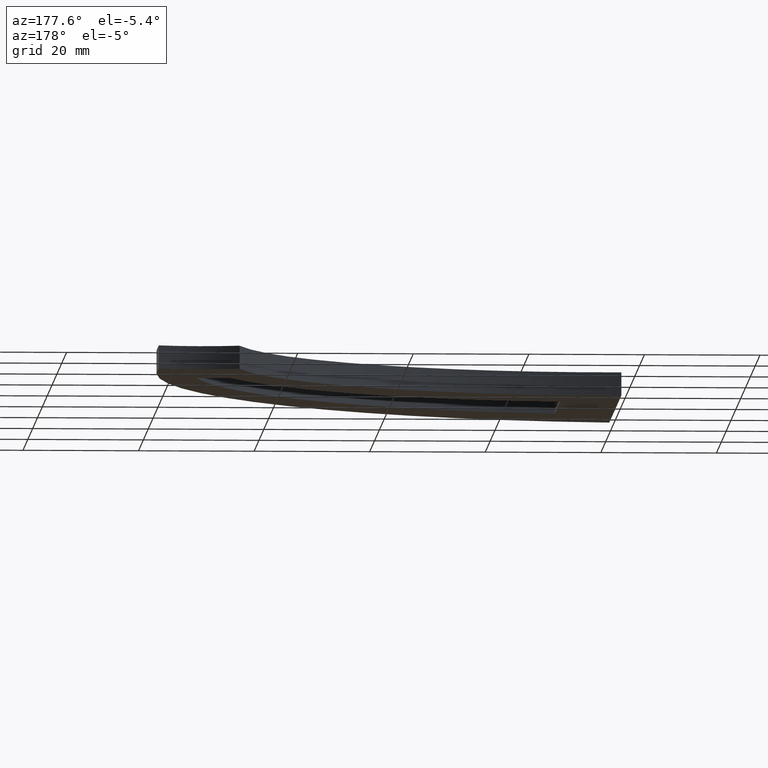
[diagram: clean part render]
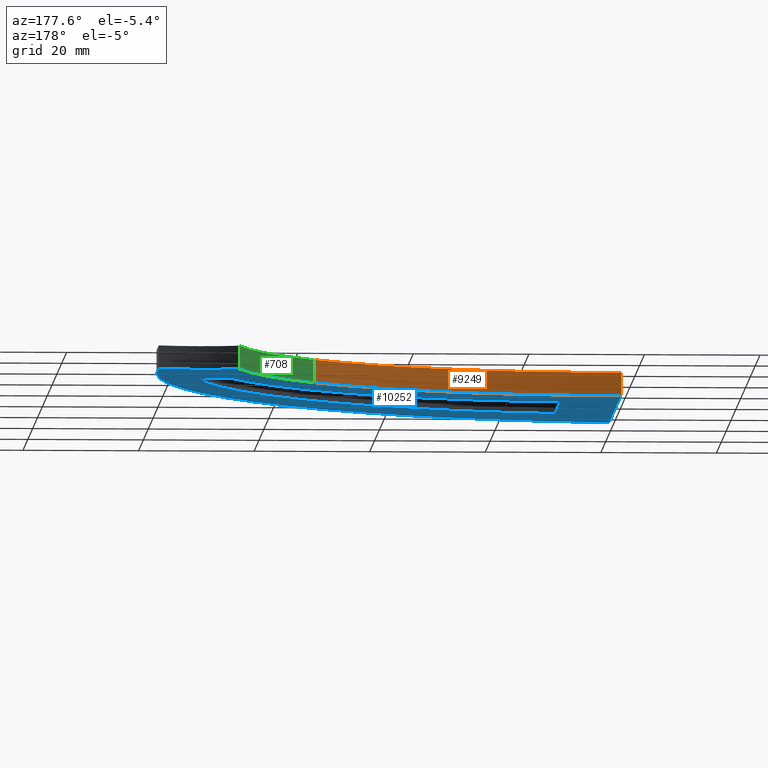
[diagram: same view with three faces highlighted in distinct colors, each labeled with its STEP entity id]
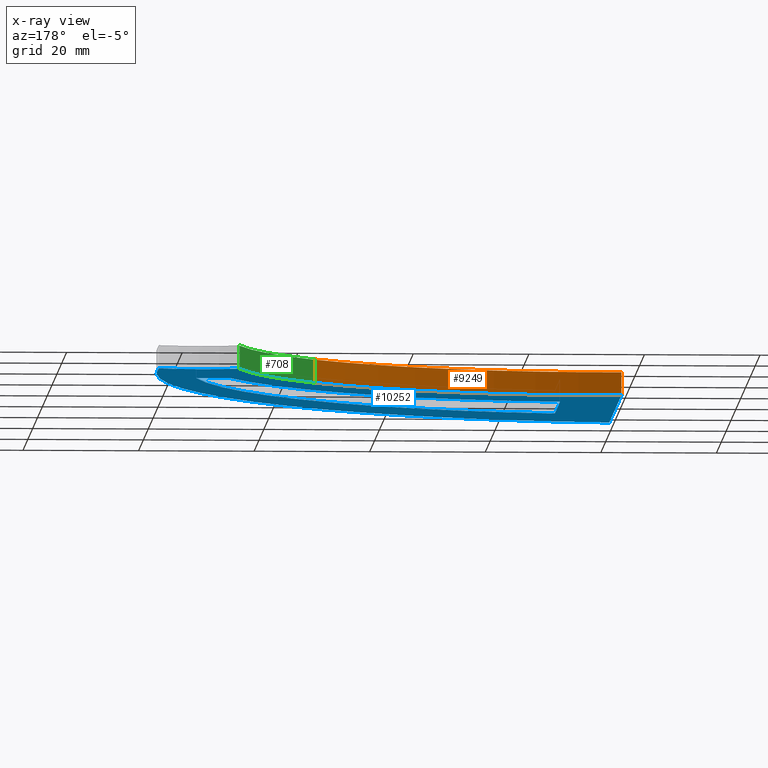
[diagram: x-ray of the same camera — body ghosted, the three highlighted faces saturated]
A machine part, auxiliary view with three faces highlighted in distinct colors.
The next image is the same camera in x-ray (body ghosted, the three faces saturated) — at least one of them is partly hidden behind the body in this view.
Their STEP definitions:

[orange] entity #9249 — the highlighted cylindrical surface (partial cylindrical patch) has radius 70 mm, axis along (-0, -0, -1).
#557 = AXIS2_PLACEMENT_3D ( 'NONE', #2133, #5687, #6585 ) ;
#1533 = ORIENTED_EDGE ( 'NONE', *, *, #4539, .F. ) ;
#1899 = VERTEX_POINT ( 'NONE', #7404 ) ;
#1960 = EDGE_CURVE ( 'NONE', #1899, #6476, #3991, .T. ) ;
#2133 = CARTESIAN_POINT ( 'NONE',  ( 3.879352446742994065, 94.89242179660072907, 2.000000000000000000 ) ) ;
#2349 = CARTESIAN_POINT ( 'NONE',  ( 53.97457268643530881, 45.99999999999996447, 2.000000000000000000 ) ) ;
#2955 = VECTOR ( 'NONE', #10871, 1000.000000000000000 ) ;
#3228 = CARTESIAN_POINT ( 'NONE',  ( 3.879352446742994065, 94.89242179660072907, -2.000000000000000000 ) ) ;
#3770 = CARTESIAN_POINT ( 'NONE',  ( 53.97457268643530881, 45.99999999999996447, -2.000000000000000000 ) ) ;
#3955 = CARTESIAN_POINT ( 'NONE',  ( 3.879352446742994065, 94.89242179660072907, 2.000000000000000000 ) ) ;
#3979 = DIRECTION ( 'NONE',  ( -0.000000000000000000, 0.000000000000000000, 1.000000000000000000 ) ) ;
#3991 = LINE ( 'NONE', #2349, #10642 ) ;
#4134 = ORIENTED_EDGE ( 'NONE', *, *, #11594, .T. ) ;
#4160 = ORIENTED_EDGE ( 'NONE', *, *, #10152, .F. ) ;
#4539 = EDGE_CURVE ( 'NONE', #9402, #6476, #10929, .T. ) ;
#4810 = DIRECTION ( 'NONE',  ( 1.000000000000000000, 0.000000000000000000, 0.000000000000000000 ) ) ;
#4881 = DIRECTION ( 'NONE',  ( -0.000000000000000000, 0.000000000000000000, 1.000000000000000000 ) ) ;
#4959 = DIRECTION ( 'NONE',  ( 1.000000000000000000, 0.000000000000000000, 0.000000000000000000 ) ) ;
#5365 = LINE ( 'NONE', #9974, #2955 ) ;
#5687 = DIRECTION ( 'NONE',  ( -0.000000000000000000, -0.000000000000000000, -1.000000000000000000 ) ) ;
#5742 = AXIS2_PLACEMENT_3D ( 'NONE', #3955, #3979, #4810 ) ;
#5794 = CYLINDRICAL_SURFACE ( 'NONE', #557, 69.99999999999997158 ) ;
#6476 = VERTEX_POINT ( 'NONE', #3770 ) ;
#6506 = FACE_OUTER_BOUND ( 'NONE', #11247, .T. ) ;
#6585 = DIRECTION ( 'NONE',  ( -1.000000000000000000, 0.000000000000000000, 0.000000000000000000 ) ) ;
#7147 = CARTESIAN_POINT ( 'NONE',  ( 1.998401444325281773E-12, 24.99999999999996803, 2.000000000000000000 ) ) ;
#7404 = CARTESIAN_POINT ( 'NONE',  ( 53.97457268643530881, 45.99999999999996447, 2.000000000000000000 ) ) ;
#7725 = AXIS2_PLACEMENT_3D ( 'NONE', #3228, #4881, #4959 ) ;
#7967 = ORIENTED_EDGE ( 'NONE', *, *, #1960, .T. ) ;
#8885 = CIRCLE ( 'NONE', #5742, 69.99999999999997158 ) ;
#9249 = ADVANCED_FACE ( 'NONE', ( #6506 ), #5794, .F. ) ;
#9402 = VERTEX_POINT ( 'NONE', #10418 ) ;
#9665 = DIRECTION ( 'NONE',  ( -0.000000000000000000, -0.000000000000000000, -1.000000000000000000 ) ) ;
#9974 = CARTESIAN_POINT ( 'NONE',  ( 1.998401444325281773E-12, 24.99999999999996803, 2.000000000000000000 ) ) ;
#10152 = EDGE_CURVE ( 'NONE', #11341, #9402, #5365, .T. ) ;
#10418 = CARTESIAN_POINT ( 'NONE',  ( 1.998401444325281773E-12, 24.99999999999996803, -2.000000000000000000 ) ) ;
#10642 = VECTOR ( 'NONE', #9665, 1000.000000000000000 ) ;
#10871 = DIRECTION ( 'NONE',  ( -0.000000000000000000, -0.000000000000000000, -1.000000000000000000 ) ) ;
#10929 = CIRCLE ( 'NONE', #7725, 69.99999999999997158 ) ;
#11247 = EDGE_LOOP ( 'NONE', ( #1533, #4160, #4134, #7967 ) ) ;
#11341 = VERTEX_POINT ( 'NONE', #7147 ) ;
#11594 = EDGE_CURVE ( 'NONE', #11341, #1899, #8885, .T. ) ;

[blue] entity #10252 — the highlighted planar face has unit normal (-0, 0, 1).
#188 = DIRECTION ( 'NONE',  ( -0.000000000000000000, 0.000000000000000000, 1.000000000000000000 ) ) ;
#717 = DIRECTION ( 'NONE',  ( 1.000000000000000000, 0.000000000000000000, 0.000000000000000000 ) ) ;
#876 = CIRCLE ( 'NONE', #5707, 91.99999999999938893 ) ;
#1024 = ORIENTED_EDGE ( 'NONE', *, *, #4539, .T. ) ;
#1030 = ORIENTED_EDGE ( 'NONE', *, *, #6707, .F. ) ;
#1039 = EDGE_CURVE ( 'NONE', #1054, #9118, #1302, .T. ) ;
#1054 = VERTEX_POINT ( 'NONE', #3146 ) ;
#1209 = EDGE_CURVE ( 'NONE', #2931, #3038, #876, .T. ) ;
#1230 = DIRECTION ( 'NONE',  ( 1.000000000000000000, 0.000000000000000000, 0.000000000000000000 ) ) ;
#1302 = CIRCLE ( 'NONE', #10175, 78.49999999999998579 ) ;
#1337 = PLANE ( 'NONE',  #8151 ) ;
#1444 = LINE ( 'NONE', #7695, #8403 ) ;
#2155 = VECTOR ( 'NONE', #11701, 1000.000000000000000 ) ;
#2259 = CIRCLE ( 'NONE', #3148, 70.00000000000000000 ) ;
#2624 = DIRECTION ( 'NONE',  ( -0.000000000000000000, 0.000000000000000000, 1.000000000000000000 ) ) ;
#2931 = VERTEX_POINT ( 'NONE', #5619 ) ;
#2990 = CARTESIAN_POINT ( 'NONE',  ( 5.180452133363093736, 82.72691493104838401, -2.000000000000000000 ) ) ;
#3038 = VERTEX_POINT ( 'NONE', #4803 ) ;
#3146 = CARTESIAN_POINT ( 'NONE',  ( 10.09999999999999964, -8.700000000000001066, -2.000000000000000000 ) ) ;
#3148 = AXIS2_PLACEMENT_3D ( 'NONE', #2990, #188, #3906 ) ;
#3228 = CARTESIAN_POINT ( 'NONE',  ( 3.879352446742994065, 94.89242179660072907, -2.000000000000000000 ) ) ;
#3380 = CARTESIAN_POINT ( 'NONE',  ( 14.61404249810564338, 84.41547426875771976, -2.000000000000000000 ) ) ;
#3441 = VECTOR ( 'NONE', #6279, 1000.000000000000000 ) ;
#3499 = DIRECTION ( 'NONE',  ( -0.000000000000000000, 0.000000000000000000, 1.000000000000000000 ) ) ;
#3571 = EDGE_CURVE ( 'NONE', #6476, #6435, #7495, .T. ) ;
#3733 = ORIENTED_EDGE ( 'NONE', *, *, #4549, .F. ) ;
#3755 = ORIENTED_EDGE ( 'NONE', *, *, #9257, .F. ) ;
#3770 = CARTESIAN_POINT ( 'NONE',  ( 53.97457268643530881, 45.99999999999996447, -2.000000000000000000 ) ) ;
#3783 = EDGE_LOOP ( 'NONE', ( #1024, #10994, #4476, #5030, #10814 ) ) ;
#3801 = CARTESIAN_POINT ( 'NONE',  ( 74.99999999999998579, 91.20000000000000284, -2.000000000000000000 ) ) ;
#3838 = DIRECTION ( 'NONE',  ( -0.000000000000000000, 0.000000000000000000, 1.000000000000000000 ) ) ;
#3906 = DIRECTION ( 'NONE',  ( 1.000000000000000000, 0.000000000000000000, 0.000000000000000000 ) ) ;
#3930 = DIRECTION ( 'NONE',  ( -0.000000000000000000, 0.000000000000000000, 1.000000000000000000 ) ) ;
#4056 = DIRECTION ( 'NONE',  ( -0.000000000000000000, 0.000000000000000000, 1.000000000000000000 ) ) ;
#4085 = CARTESIAN_POINT ( 'NONE',  ( 10.09999999999999964, 1.787827255853647886E-15, -2.000000000000000000 ) ) ;
#4192 = DIRECTION ( 'NONE',  ( 3.552713678800588651E-14, 1.000000000000000000, 0.000000000000000000 ) ) ;
#4476 = ORIENTED_EDGE ( 'NONE', *, *, #8703, .T. ) ;
#4539 = EDGE_CURVE ( 'NONE', #9402, #6476, #10929, .T. ) ;
#4549 = EDGE_CURVE ( 'NONE', #1054, #9888, #5812, .T. ) ;
#4663 = DIRECTION ( 'NONE',  ( 1.000000000000000000, 0.000000000000000000, 0.000000000000000000 ) ) ;
#4694 = LINE ( 'NONE', #8985, #2155 ) ;
#4803 = CARTESIAN_POINT ( 'NONE',  ( 81.99999999999997158, 71.18900302333739205, -2.000000000000000000 ) ) ;
#4881 = DIRECTION ( 'NONE',  ( -0.000000000000000000, 0.000000000000000000, 1.000000000000000000 ) ) ;
#4959 = DIRECTION ( 'NONE',  ( 1.000000000000000000, 0.000000000000000000, 0.000000000000000000 ) ) ;
#5030 = ORIENTED_EDGE ( 'NONE', *, *, #1209, .F. ) ;
#5234 = CIRCLE ( 'NONE', #7814, 21.19999999999999574 ) ;
#5619 = CARTESIAN_POINT ( 'NONE',  ( 2.220446049250313081E-13, -24.99999999999879918, -2.000000000000000000 ) ) ;
#5707 = AXIS2_PLACEMENT_3D ( 'NONE', #8928, #3499, #9828 ) ;
#5812 = LINE ( 'NONE', #4085, #3441 ) ;
#5917 = EDGE_CURVE ( 'NONE', #2931, #9402, #1444, .T. ) ;
#6279 = DIRECTION ( 'NONE',  ( -1.770125995894700956E-16, 1.000000000000000000, 0.000000000000000000 ) ) ;
#6435 = VERTEX_POINT ( 'NONE', #10800 ) ;
#6476 = VERTEX_POINT ( 'NONE', #3770 ) ;
#6704 = CARTESIAN_POINT ( 'NONE',  ( 0.000000000000000000, 0.000000000000000000, -2.000000000000000000 ) ) ;
#6707 = EDGE_CURVE ( 'NONE', #9287, #9118, #4694, .T. ) ;
#7335 = EDGE_LOOP ( 'NONE', ( #3755, #3733, #7950, #1030 ) ) ;
#7495 = CIRCLE ( 'NONE', #11294, 55.00000000000000711 ) ;
#7554 = CARTESIAN_POINT ( 'NONE',  ( 69.01433309437241803, 54.00000000000000711, -2.000000000000000000 ) ) ;
#7586 = FACE_OUTER_BOUND ( 'NONE', #3783, .T. ) ;
#7640 = DIRECTION ( 'NONE',  ( 1.000000000000000000, 0.000000000000000000, 0.000000000000000000 ) ) ;
#7695 = CARTESIAN_POINT ( 'NONE',  ( 1.110223024625135740E-12, -3.944304526105082560E-26, -2.000000000000000000 ) ) ;
#7725 = AXIS2_PLACEMENT_3D ( 'NONE', #3228, #4881, #4959 ) ;
#7814 = AXIS2_PLACEMENT_3D ( 'NONE', #3801, #3838, #4663 ) ;
#7950 = ORIENTED_EDGE ( 'NONE', *, *, #1039, .T. ) ;
#8024 = FACE_BOUND ( 'NONE', #7335, .T. ) ;
#8088 = CARTESIAN_POINT ( 'NONE',  ( 74.81433309437242940, 54.00000000000000711, -2.000000000000000000 ) ) ;
#8151 = AXIS2_PLACEMENT_3D ( 'NONE', #6704, #4056, #7640 ) ;
#8403 = VECTOR ( 'NONE', #4192, 1000.000000000000000 ) ;
#8703 = EDGE_CURVE ( 'NONE', #6435, #3038, #5234, .T. ) ;
#8928 = CARTESIAN_POINT ( 'NONE',  ( -9.878794471127335441, 66.46807869304582539, -2.000000000000000000 ) ) ;
#8985 = CARTESIAN_POINT ( 'NONE',  ( -0.000000000000000000, 54.00000000000000711, -2.000000000000000000 ) ) ;
#9118 = VERTEX_POINT ( 'NONE', #8088 ) ;
#9257 = EDGE_CURVE ( 'NONE', #9888, #9287, #2259, .T. ) ;
#9287 = VERTEX_POINT ( 'NONE', #7554 ) ;
#9402 = VERTEX_POINT ( 'NONE', #10418 ) ;
#9828 = DIRECTION ( 'NONE',  ( 1.000000000000000000, 0.000000000000000000, 0.000000000000000000 ) ) ;
#9888 = VERTEX_POINT ( 'NONE', #10558 ) ;
#10175 = AXIS2_PLACEMENT_3D ( 'NONE', #11006, #3930, #1230 ) ;
#10252 = ADVANCED_FACE ( 'NONE', ( #7586, #8024 ), #1337, .F. ) ;
#10418 = CARTESIAN_POINT ( 'NONE',  ( 1.998401444325281773E-12, 24.99999999999996803, -2.000000000000000000 ) ) ;
#10558 = CARTESIAN_POINT ( 'NONE',  ( 10.09999999999999787, 12.90000000000000391, -2.000000000000000000 ) ) ;
#10800 = CARTESIAN_POINT ( 'NONE',  ( 68.00000000000000000, 71.18900302333739205, -2.000000000000000000 ) ) ;
#10814 = ORIENTED_EDGE ( 'NONE', *, *, #5917, .T. ) ;
#10929 = CIRCLE ( 'NONE', #7725, 69.99999999999997158 ) ;
#10994 = ORIENTED_EDGE ( 'NONE', *, *, #3571, .T. ) ;
#11006 = CARTESIAN_POINT ( 'NONE',  ( -2.274320155918185815, 68.81855391245915143, -2.000000000000000000 ) ) ;
#11294 = AXIS2_PLACEMENT_3D ( 'NONE', #3380, #2624, #717 ) ;
#11701 = DIRECTION ( 'NONE',  ( 1.000000000000000000, 0.000000000000000000, 0.000000000000000000 ) ) ;

[green] entity #708 — the highlighted cylindrical surface (partial cylindrical patch) has radius 55 mm, axis along (-0, -0, -1).
#708 = ADVANCED_FACE ( 'NONE', ( #10361 ), #5828, .F. ) ;
#717 = DIRECTION ( 'NONE',  ( 1.000000000000000000, 0.000000000000000000, 0.000000000000000000 ) ) ;
#1344 = EDGE_CURVE ( 'NONE', #2443, #6435, #5405, .T. ) ;
#1634 = CARTESIAN_POINT ( 'NONE',  ( 68.00000000000000000, 71.18900302333739205, 2.000000000000000000 ) ) ;
#1899 = VERTEX_POINT ( 'NONE', #7404 ) ;
#1960 = EDGE_CURVE ( 'NONE', #1899, #6476, #3991, .T. ) ;
#2304 = VECTOR ( 'NONE', #7971, 1000.000000000000000 ) ;
#2349 = CARTESIAN_POINT ( 'NONE',  ( 53.97457268643530881, 45.99999999999996447, 2.000000000000000000 ) ) ;
#2443 = VERTEX_POINT ( 'NONE', #10656 ) ;
#2624 = DIRECTION ( 'NONE',  ( -0.000000000000000000, 0.000000000000000000, 1.000000000000000000 ) ) ;
#3380 = CARTESIAN_POINT ( 'NONE',  ( 14.61404249810564338, 84.41547426875771976, -2.000000000000000000 ) ) ;
#3571 = EDGE_CURVE ( 'NONE', #6476, #6435, #7495, .T. ) ;
#3770 = CARTESIAN_POINT ( 'NONE',  ( 53.97457268643530881, 45.99999999999996447, -2.000000000000000000 ) ) ;
#3991 = LINE ( 'NONE', #2349, #10642 ) ;
#4290 = EDGE_CURVE ( 'NONE', #1899, #2443, #7056, .T. ) ;
#4576 = ORIENTED_EDGE ( 'NONE', *, *, #1960, .F. ) ;
#4745 = DIRECTION ( 'NONE',  ( 1.000000000000000000, 0.000000000000000000, 0.000000000000000000 ) ) ;
#5405 = LINE ( 'NONE', #1634, #2304 ) ;
#5828 = CYLINDRICAL_SURFACE ( 'NONE', #8966, 55.00000000000000711 ) ;
#5955 = DIRECTION ( 'NONE',  ( -1.000000000000000000, 0.000000000000000000, 0.000000000000000000 ) ) ;
#6435 = VERTEX_POINT ( 'NONE', #10800 ) ;
#6476 = VERTEX_POINT ( 'NONE', #3770 ) ;
#6545 = DIRECTION ( 'NONE',  ( -0.000000000000000000, -0.000000000000000000, -1.000000000000000000 ) ) ;
#6597 = ORIENTED_EDGE ( 'NONE', *, *, #3571, .F. ) ;
#7056 = CIRCLE ( 'NONE', #8369, 55.00000000000000711 ) ;
#7214 = EDGE_LOOP ( 'NONE', ( #6597, #4576, #8826, #10732 ) ) ;
#7404 = CARTESIAN_POINT ( 'NONE',  ( 53.97457268643530881, 45.99999999999996447, 2.000000000000000000 ) ) ;
#7495 = CIRCLE ( 'NONE', #11294, 55.00000000000000711 ) ;
#7971 = DIRECTION ( 'NONE',  ( -0.000000000000000000, -0.000000000000000000, -1.000000000000000000 ) ) ;
#8369 = AXIS2_PLACEMENT_3D ( 'NONE', #10097, #9308, #4745 ) ;
#8826 = ORIENTED_EDGE ( 'NONE', *, *, #4290, .T. ) ;
#8966 = AXIS2_PLACEMENT_3D ( 'NONE', #10238, #6545, #5955 ) ;
#9308 = DIRECTION ( 'NONE',  ( -0.000000000000000000, 0.000000000000000000, 1.000000000000000000 ) ) ;
#9665 = DIRECTION ( 'NONE',  ( -0.000000000000000000, -0.000000000000000000, -1.000000000000000000 ) ) ;
#10097 = CARTESIAN_POINT ( 'NONE',  ( 14.61404249810564338, 84.41547426875771976, 2.000000000000000000 ) ) ;
#10238 = CARTESIAN_POINT ( 'NONE',  ( 14.61404249810564338, 84.41547426875771976, 2.000000000000000000 ) ) ;
#10361 = FACE_OUTER_BOUND ( 'NONE', #7214, .T. ) ;
#10642 = VECTOR ( 'NONE', #9665, 1000.000000000000000 ) ;
#10656 = CARTESIAN_POINT ( 'NONE',  ( 68.00000000000000000, 71.18900302333739205, 2.000000000000000000 ) ) ;
#10732 = ORIENTED_EDGE ( 'NONE', *, *, #1344, .T. ) ;
#10800 = CARTESIAN_POINT ( 'NONE',  ( 68.00000000000000000, 71.18900302333739205, -2.000000000000000000 ) ) ;
#11294 = AXIS2_PLACEMENT_3D ( 'NONE', #3380, #2624, #717 ) ;